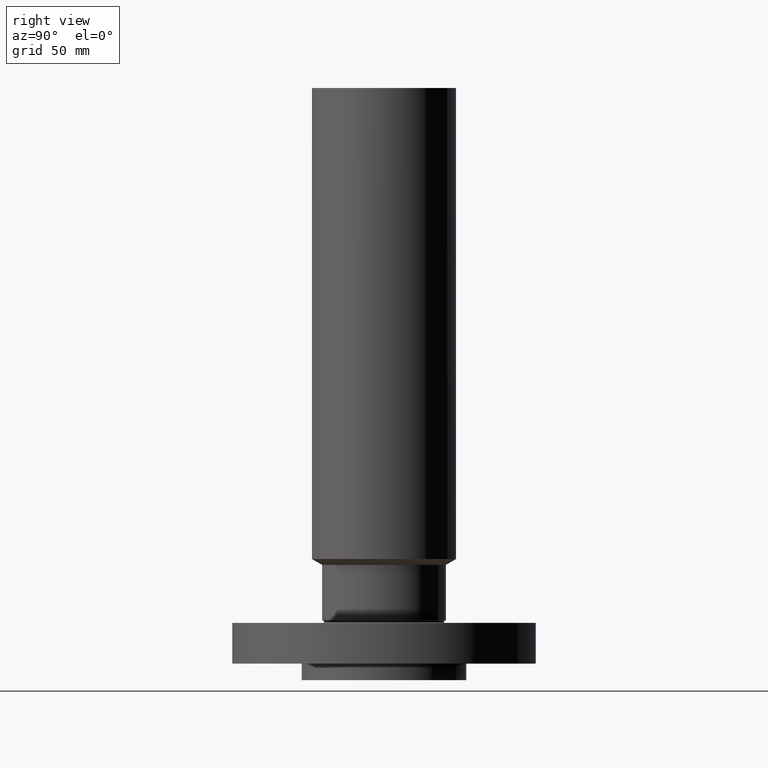
[diagram: clean part render]
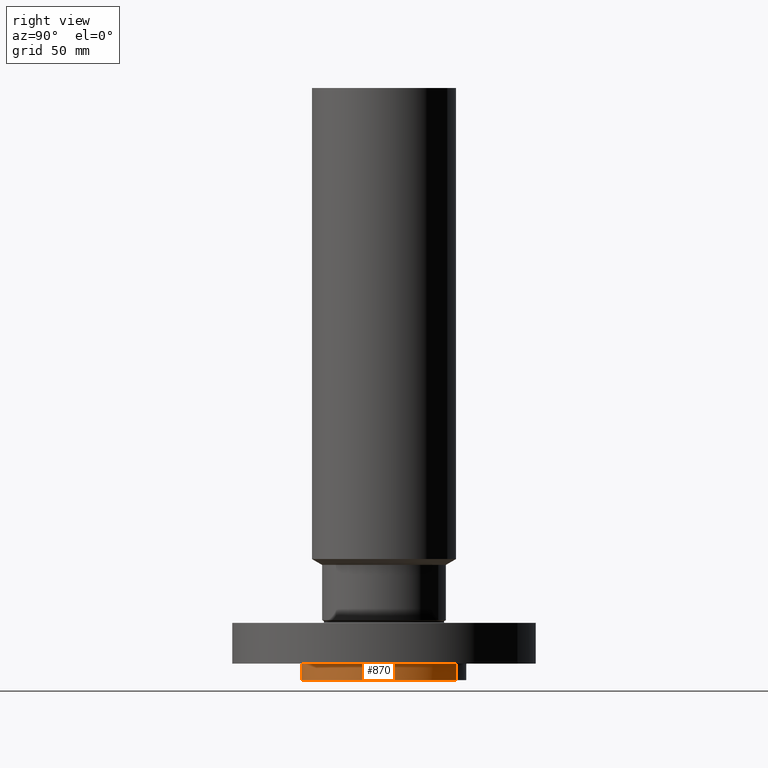
[diagram: same view with one face highlighted and labeled with its STEP entity id]
A machine part, right view. The second image highlights one B-rep face of the part: STEP entity #870.
In plain terms, the highlighted cylindrical surface (partial cylindrical patch) has radius 31.75 mm, axis along (0, 0, -1).
Its self-contained STEP definition (entity closure, byte-faithful):
#133=AXIS2_PLACEMENT_3D('Circle Axis2P3D',#131,#132,$) ;
#140=AXIS2_PLACEMENT_3D('Circle Axis2P3D',#138,#139,$) ;
#147=AXIS2_PLACEMENT_3D('Circle Axis2P3D',#145,#146,$) ;
#826=AXIS2_PLACEMENT_3D('Circle Axis2P3D',#824,#825,$) ;
#841=AXIS2_PLACEMENT_3D('Cylinder Axis2P3D',#838,#839,#840) ;
#128=CARTESIAN_POINT('Vertex',(-0.599281923258,-1.09697820237,0.)) ;
#131=CARTESIAN_POINT('Axis2P3D Location',(0.,0.,0.)) ;
#135=CARTESIAN_POINT('Vertex',(-2.08756999728E-016,-1.25,0.)) ;
#138=CARTESIAN_POINT('Axis2P3D Location',(0.,0.,0.)) ;
#142=CARTESIAN_POINT('Vertex',(1.25000000001,-1.91428434947E-015,0.)) ;
#145=CARTESIAN_POINT('Axis2P3D Location',(0.,0.,0.)) ;
#149=CARTESIAN_POINT('Vertex',(0.599281923258,1.09697820237,0.)) ;
#819=CARTESIAN_POINT('Vertex',(-0.599281923258,-1.09697820237,-0.250000000001)) ;
#821=CARTESIAN_POINT('Vertex',(0.599281923258,1.09697820237,-0.250000000001)) ;
#824=CARTESIAN_POINT('Axis2P3D Location',(0.,0.,-0.250000000001)) ;
#838=CARTESIAN_POINT('Axis2P3D Location',(0.,0.,4.25000000002)) ;
#843=CARTESIAN_POINT('Line Origine',(-0.599281923258,-1.09697820237,-0.125000000001)) ;
#848=CARTESIAN_POINT('Line Origine',(0.599281923258,1.09697820237,-0.125000000001)) ;
#132=DIRECTION('Axis2P3D Direction',(0.,0.,-0.0393700787402)) ;
#139=DIRECTION('Axis2P3D Direction',(0.,0.,-0.0393700787402)) ;
#146=DIRECTION('Axis2P3D Direction',(0.,0.,-0.0393700787402)) ;
#825=DIRECTION('Axis2P3D Direction',(0.,0.,-0.0393700787402)) ;
#839=DIRECTION('Axis2P3D Direction',(0.,0.,-0.0393700787402)) ;
#840=DIRECTION('Axis2P3D XDirection',(0.0188750212049,0.0345504945626,0.)) ;
#844=DIRECTION('Vector Direction',(0.,0.,-0.0393700787402)) ;
#849=DIRECTION('Vector Direction',(0.,0.,-0.0393700787402)) ;
#845=VECTOR('Line Direction',#844,0.0393700787402) ;
#850=VECTOR('Line Direction',#849,0.0393700787402) ;
#863=ORIENTED_EDGE('',*,*,#828,.F.) ;
#864=ORIENTED_EDGE('',*,*,#852,.T.) ;
#865=ORIENTED_EDGE('',*,*,#151,.T.) ;
#866=ORIENTED_EDGE('',*,*,#144,.T.) ;
#867=ORIENTED_EDGE('',*,*,#137,.T.) ;
#868=ORIENTED_EDGE('',*,*,#847,.F.) ;
#870=ADVANCED_FACE('PartBody',(#869),#842,.T.) ;
#134=CIRCLE('generated circle',#133,1.25000000001) ;
#141=CIRCLE('generated circle',#140,1.25000000001) ;
#148=CIRCLE('generated circle',#147,1.25000000001) ;
#827=CIRCLE('generated circle',#826,1.25000000001) ;
#842=CYLINDRICAL_SURFACE('generated cylinder',#841,1.25000000001) ;
#137=EDGE_CURVE('',#136,#129,#134,.T.) ;
#144=EDGE_CURVE('',#143,#136,#141,.T.) ;
#151=EDGE_CURVE('',#150,#143,#148,.T.) ;
#828=EDGE_CURVE('',#822,#820,#827,.T.) ;
#847=EDGE_CURVE('',#820,#129,#846,.F.) ;
#852=EDGE_CURVE('',#822,#150,#851,.F.) ;
#862=EDGE_LOOP('',(#863,#864,#865,#866,#867,#868)) ;
#869=FACE_OUTER_BOUND('',#862,.T.) ;
#846=LINE('Line',#843,#845) ;
#851=LINE('Line',#848,#850) ;
#129=VERTEX_POINT('',#128) ;
#136=VERTEX_POINT('',#135) ;
#143=VERTEX_POINT('',#142) ;
#150=VERTEX_POINT('',#149) ;
#820=VERTEX_POINT('',#819) ;
#822=VERTEX_POINT('',#821) ;